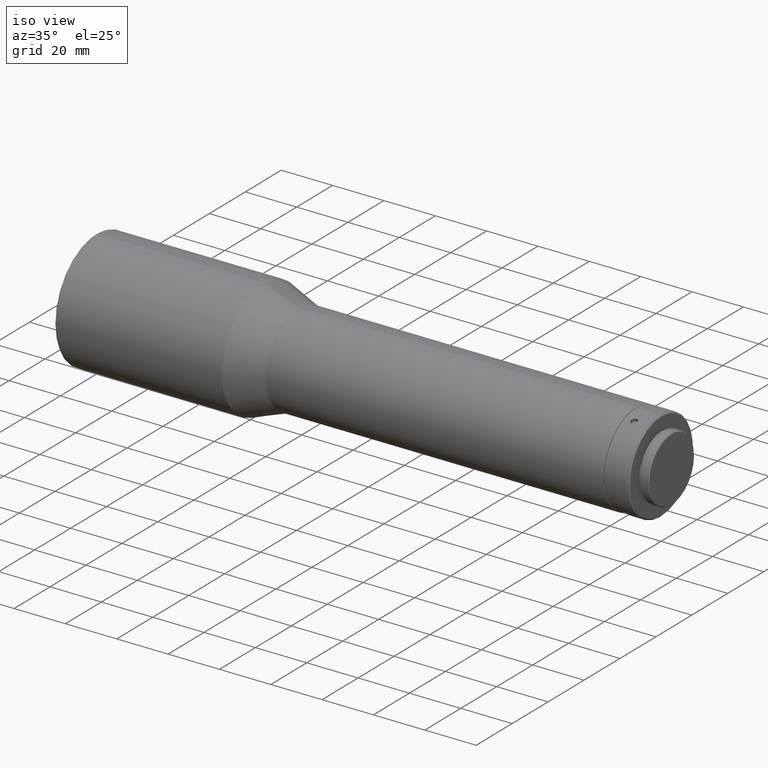
[diagram: clean part render]
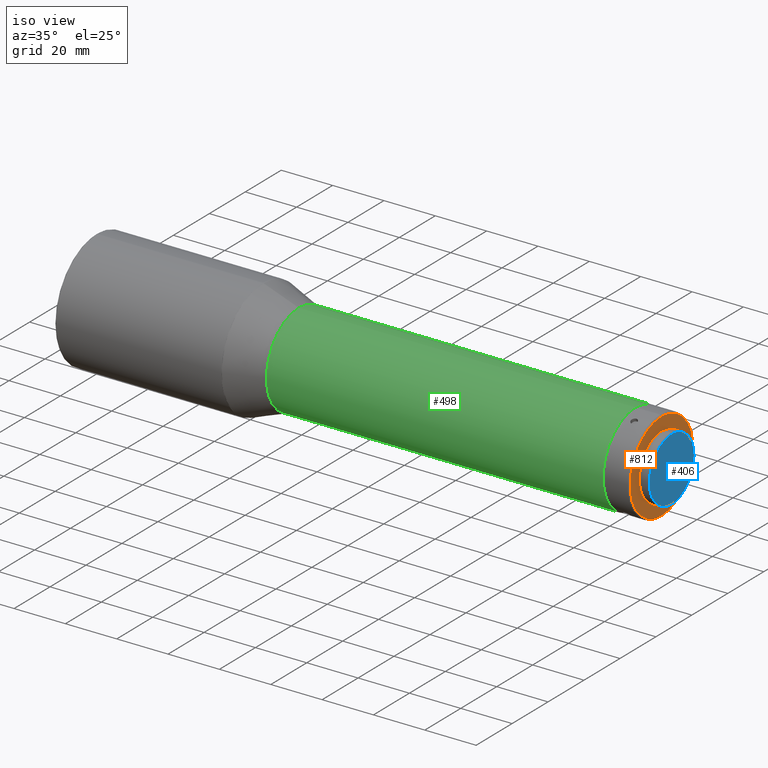
[diagram: same view with three faces highlighted in distinct colors, each labeled with its STEP entity id]
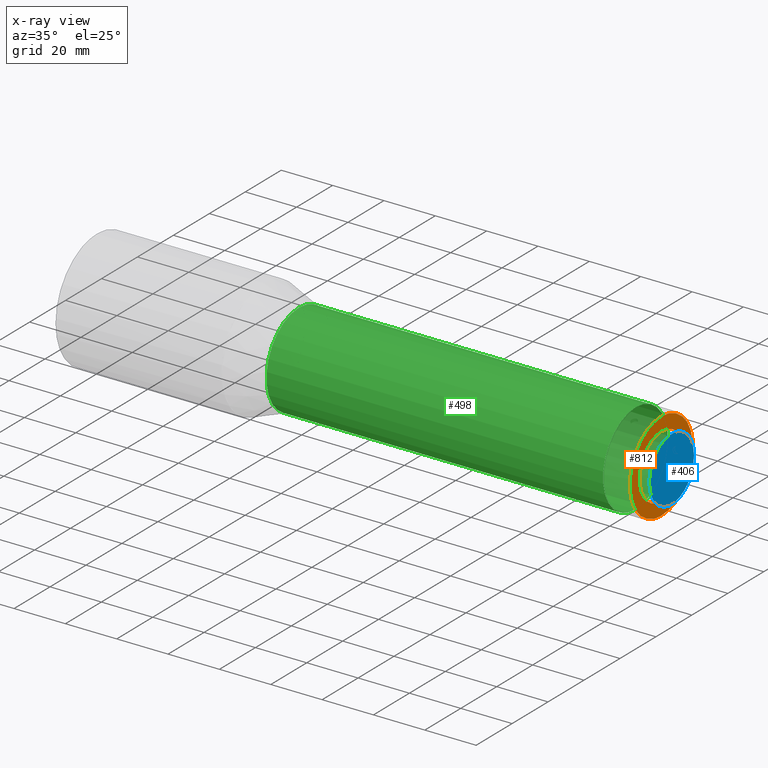
[diagram: x-ray of the same camera — body ghosted, the three highlighted faces saturated]
A machine part, iso view with three faces highlighted in distinct colors.
The next image is the same camera in x-ray (body ghosted, the three faces saturated) — at least one of them is partly hidden behind the body in this view.
Their STEP definitions:

[orange] entity #812 — the highlighted planar face has unit normal (-1, 0, 0).
#3 = VERTEX_POINT ( 'NONE', #251 ) ;
#64 = CARTESIAN_POINT ( 'NONE',  ( 700.1539529999998877, 0.000000000000000000, 12.30000000000000071 ) ) ;
#90 = EDGE_CURVE ( 'NONE', #639, #639, #487, .T. ) ;
#104 = DIRECTION ( 'NONE',  ( -1.000000000000000000, 0.000000000000000000, -0.000000000000000000 ) ) ;
#143 = AXIS2_PLACEMENT_3D ( 'NONE', #352, #834, #239 ) ;
#160 = EDGE_CURVE ( 'NONE', #3, #3, #620, .T. ) ;
#239 = DIRECTION ( 'NONE',  ( 0.000000000000000000, 0.000000000000000000, 1.000000000000000000 ) ) ;
#251 = CARTESIAN_POINT ( 'NONE',  ( 700.1539529999998877, 0.000000000000000000, 17.49999999999993960 ) ) ;
#255 = DIRECTION ( 'NONE',  ( 0.000000000000000000, 0.000000000000000000, 1.000000000000000000 ) ) ;
#261 = FACE_OUTER_BOUND ( 'NONE', #842, .T. ) ;
#320 = FACE_BOUND ( 'NONE', #776, .T. ) ;
#352 = CARTESIAN_POINT ( 'NONE',  ( 700.1539529999998877, 0.000000000000000000, 0.000000000000000000 ) ) ;
#435 = CARTESIAN_POINT ( 'NONE',  ( 700.1539529999998877, 0.000000000000000000, 0.000000000000000000 ) ) ;
#470 = ORIENTED_EDGE ( 'NONE', *, *, #160, .F. ) ;
#487 = CIRCLE ( 'NONE', #143, 12.30000000000000071 ) ;
#495 = AXIS2_PLACEMENT_3D ( 'NONE', #435, #104, #255 ) ;
#576 = CARTESIAN_POINT ( 'NONE',  ( 700.1539529999998877, 12.16776719955277208, -1.798733270245396199 ) ) ;
#620 = CIRCLE ( 'NONE', #495, 17.49999999999993960 ) ;
#639 = VERTEX_POINT ( 'NONE', #64 ) ;
#643 = PLANE ( 'NONE',  #774 ) ;
#652 = DIRECTION ( 'NONE',  ( -1.000000000000000000, 0.000000000000000000, 0.000000000000000000 ) ) ;
#733 = ORIENTED_EDGE ( 'NONE', *, *, #90, .F. ) ;
#774 = AXIS2_PLACEMENT_3D ( 'NONE', #576, #652, #785 ) ;
#776 = EDGE_LOOP ( 'NONE', ( #733 ) ) ;
#785 = DIRECTION ( 'NONE',  ( 0.000000000000000000, 0.000000000000000000, 1.000000000000000000 ) ) ;
#812 = ADVANCED_FACE ( 'NONE', ( #320, #261 ), #643, .F. ) ;
#834 = DIRECTION ( 'NONE',  ( 1.000000000000000000, -0.000000000000000000, -0.000000000000000000 ) ) ;
#842 = EDGE_LOOP ( 'NONE', ( #470 ) ) ;

[blue] entity #406 — the highlighted planar face has unit normal (-1, 0, 0).
#58 = EDGE_LOOP ( 'NONE', ( #78 ) ) ;
#63 = AXIS2_PLACEMENT_3D ( 'NONE', #780, #183, #131 ) ;
#78 = ORIENTED_EDGE ( 'NONE', *, *, #799, .F. ) ;
#131 = DIRECTION ( 'NONE',  ( 0.000000000000000000, -1.000000000000000000, 0.000000000000000000 ) ) ;
#183 = DIRECTION ( 'NONE',  ( -1.000000000000000000, -4.323966232386611717E-15, 6.392020651001037236E-16 ) ) ;
#219 = VERTEX_POINT ( 'NONE', #814 ) ;
#254 = AXIS2_PLACEMENT_3D ( 'NONE', #288, #606, #539 ) ;
#288 = CARTESIAN_POINT ( 'NONE',  ( 704.1539529999998877, 10.63443068253595847, -1.572063630499026754 ) ) ;
#354 = FACE_OUTER_BOUND ( 'NONE', #58, .T. ) ;
#406 = ADVANCED_FACE ( 'NONE', ( #354 ), #611, .F. ) ;
#488 = CIRCLE ( 'NONE', #63, 12.40000000000003411 ) ;
#539 = DIRECTION ( 'NONE',  ( 0.000000000000000000, 0.000000000000000000, 1.000000000000000000 ) ) ;
#606 = DIRECTION ( 'NONE',  ( -1.000000000000000000, 0.000000000000000000, 0.000000000000000000 ) ) ;
#611 = PLANE ( 'NONE',  #254 ) ;
#780 = CARTESIAN_POINT ( 'NONE',  ( 704.1539529999998877, 1.297189869715840771E-15, -1.917606195300100052E-16 ) ) ;
#799 = EDGE_CURVE ( 'NONE', #219, #219, #488, .T. ) ;
#814 = CARTESIAN_POINT ( 'NONE',  ( 704.1539529999998877, -12.40000000000003233, -1.917606195300100052E-16 ) ) ;

[green] entity #498 — the highlighted cylindrical surface (bore or boss wall) has radius 18 mm, axis along (-1, -0, -0).
#2 = CARTESIAN_POINT ( 'NONE',  ( 480.0000000000000000, -3.869796473041096393E-15, -3.479664509717021198E-15 ) ) ;
#19 = ORIENTED_EDGE ( 'NONE', *, *, #185, .T. ) ;
#27 = EDGE_LOOP ( 'NONE', ( #19 ) ) ;
#51 = CYLINDRICAL_SURFACE ( 'NONE', #324, 18.00000000000000355 ) ;
#52 = VERTEX_POINT ( 'NONE', #257 ) ;
#103 = AXIS2_PLACEMENT_3D ( 'NONE', #240, #698, #312 ) ;
#130 = CIRCLE ( 'NONE', #103, 18.00000000000000355 ) ;
#185 = EDGE_CURVE ( 'NONE', #52, #52, #663, .T. ) ;
#197 = DIRECTION ( 'NONE',  ( -1.000000000000000000, -0.000000000000000000, -0.000000000000000000 ) ) ;
#240 = CARTESIAN_POINT ( 'NONE',  ( 690.0539529999998649, -3.869796473041096393E-15, -3.479664509717021198E-15 ) ) ;
#244 = FACE_OUTER_BOUND ( 'NONE', #27, .T. ) ;
#257 = CARTESIAN_POINT ( 'NONE',  ( 558.9137140779818083, -3.869796473041096393E-15, 18.00000000000000000 ) ) ;
#265 = DIRECTION ( 'NONE',  ( 0.000000000000000000, 0.000000000000000000, 1.000000000000000000 ) ) ;
#307 = DIRECTION ( 'NONE',  ( 1.000000000000000000, 0.000000000000000000, 0.000000000000000000 ) ) ;
#310 = ORIENTED_EDGE ( 'NONE', *, *, #483, .T. ) ;
#312 = DIRECTION ( 'NONE',  ( 0.000000000000000000, 0.000000000000000000, 1.000000000000000000 ) ) ;
#324 = AXIS2_PLACEMENT_3D ( 'NONE', #2, #197, #265 ) ;
#378 = VERTEX_POINT ( 'NONE', #722 ) ;
#404 = EDGE_LOOP ( 'NONE', ( #310 ) ) ;
#422 = CARTESIAN_POINT ( 'NONE',  ( 558.9137140779818083, -3.869796473041096393E-15, -3.479664509717021198E-15 ) ) ;
#483 = EDGE_CURVE ( 'NONE', #378, #378, #130, .T. ) ;
#498 = ADVANCED_FACE ( 'NONE', ( #244, #638 ), #51, .T. ) ;
#503 = DIRECTION ( 'NONE',  ( 0.000000000000000000, 0.000000000000000000, 1.000000000000000000 ) ) ;
#638 = FACE_OUTER_BOUND ( 'NONE', #404, .T. ) ;
#663 = CIRCLE ( 'NONE', #721, 18.00000000000000355 ) ;
#698 = DIRECTION ( 'NONE',  ( -1.000000000000000000, -0.000000000000000000, -0.000000000000000000 ) ) ;
#721 = AXIS2_PLACEMENT_3D ( 'NONE', #422, #307, #503 ) ;
#722 = CARTESIAN_POINT ( 'NONE',  ( 690.0539529999998649, -3.869796473041096393E-15, 18.00000000000000000 ) ) ;